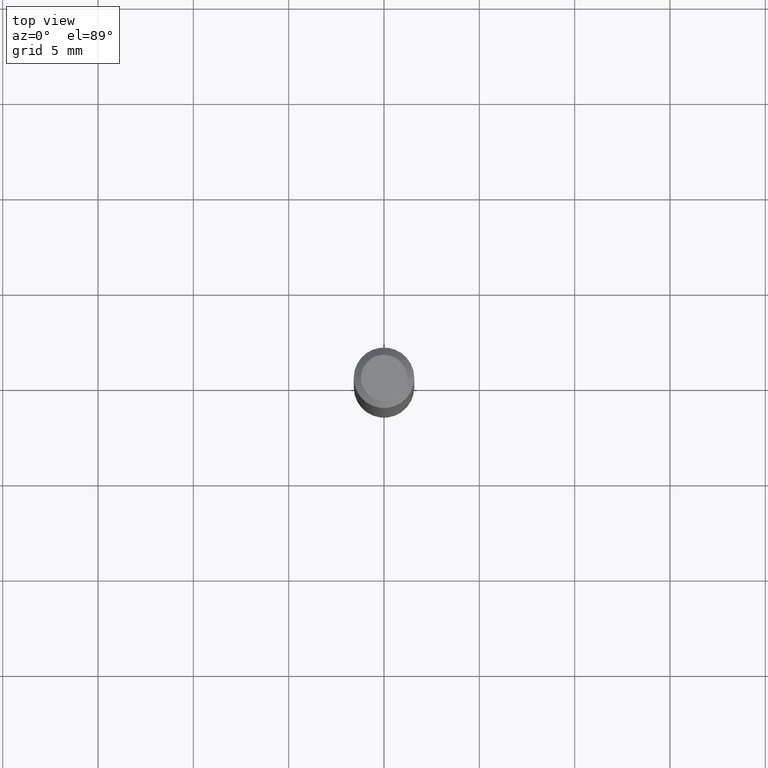
[diagram: clean part render]
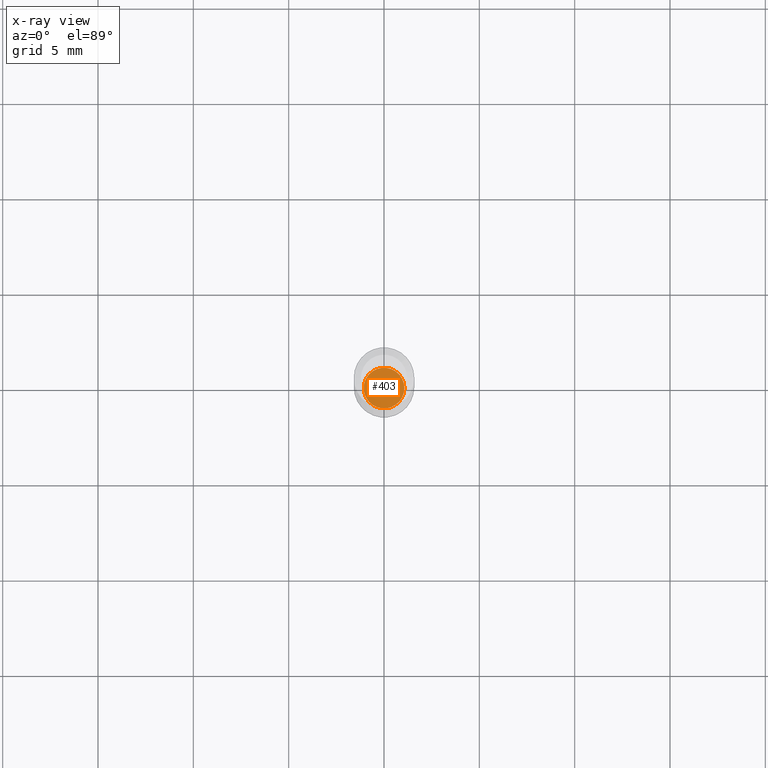
[diagram: x-ray — body ghosted, one internal face saturated and labeled with its STEP entity id]
A machine part, top view, then the same camera in x-ray: the body is ghosted and one INTERNAL B-rep face — a face not visible from any outside direction — is saturated and labeled: STEP entity #403.
In plain terms, the highlighted planar face has unit normal (-0, 0, 1).
Its self-contained STEP definition (entity closure, byte-faithful):
#21 = ORIENTED_EDGE ( 'NONE', *, *, #310, .F. ) ;
#47 = EDGE_CURVE ( 'NONE', #299, #445, #385, .T. ) ;
#116 = CARTESIAN_POINT ( 'NONE',  ( 0.04199999999999998873, -4.640178699322539502E-15, -1.244999999999999885 ) ) ;
#146 = DIRECTION ( 'NONE',  ( 1.000000000000000000, -6.982962677686276966E-15, 0.000000000000000000 ) ) ;
#154 = CARTESIAN_POINT ( 'NONE',  ( 3.044608663700494973E-29, -4.346894266859715858E-15, -1.244999999999999885 ) ) ;
#217 = CARTESIAN_POINT ( 'NONE',  ( 3.044608663700494973E-29, -4.346894266859715858E-15, -1.244999999999999885 ) ) ;
#224 = FACE_OUTER_BOUND ( 'NONE', #348, .T. ) ;
#299 = VERTEX_POINT ( 'NONE', #410 ) ;
#302 = DIRECTION ( 'NONE',  ( 1.000000000000000000, -6.982962677686276966E-15, 0.000000000000000000 ) ) ;
#310 = EDGE_CURVE ( 'NONE', #445, #299, #419, .T. ) ;
#329 = PLANE ( 'NONE',  #428 ) ;
#337 = AXIS2_PLACEMENT_3D ( 'NONE', #154, #391, #146 ) ;
#338 = AXIS2_PLACEMENT_3D ( 'NONE', #217, #374, #302 ) ;
#348 = EDGE_LOOP ( 'NONE', ( #21, #367 ) ) ;
#367 = ORIENTED_EDGE ( 'NONE', *, *, #47, .F. ) ;
#374 = DIRECTION ( 'NONE',  ( -2.445468806185136597E-29, 3.491481338843145583E-15, 1.000000000000000000 ) ) ;
#385 = CIRCLE ( 'NONE', #337, 0.04199999999999998873 ) ;
#391 = DIRECTION ( 'NONE',  ( -2.445468806185136597E-29, 3.491481338843145583E-15, 1.000000000000000000 ) ) ;
#403 = ADVANCED_FACE ( 'NONE', ( #224 ), #329, .F. ) ;
#410 = CARTESIAN_POINT ( 'NONE',  ( -0.04199999999999998873, -4.045817090666362314E-15, -1.244999999999999885 ) ) ;
#412 = DIRECTION ( 'NONE',  ( -2.438088387897960049E-29, 3.491481338843145188E-15, 1.000000000000000000 ) ) ;
#419 = CIRCLE ( 'NONE', #338, 0.04199999999999998873 ) ;
#428 = AXIS2_PLACEMENT_3D ( 'NONE', #486, #412, #475 ) ;
#445 = VERTEX_POINT ( 'NONE', #116 ) ;
#475 = DIRECTION ( 'NONE',  ( 1.000000000000000000, -6.982962677686265922E-15, 4.876176775795935793E-29 ) ) ;
#486 = CARTESIAN_POINT ( 'NONE',  ( 3.044608663700494973E-29, -4.346894266859715858E-15, -1.244999999999999885 ) ) ;